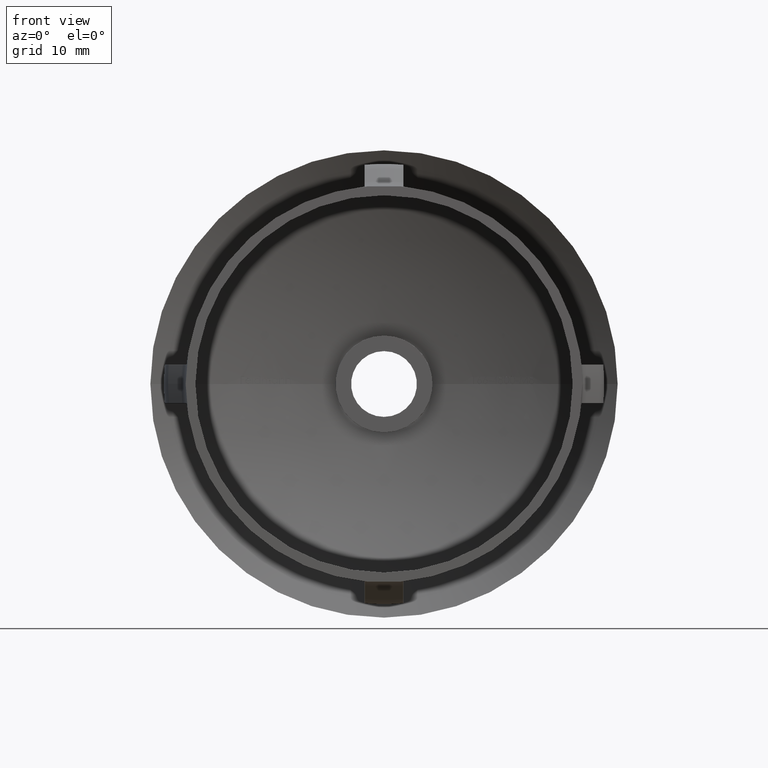
[diagram: clean part render]
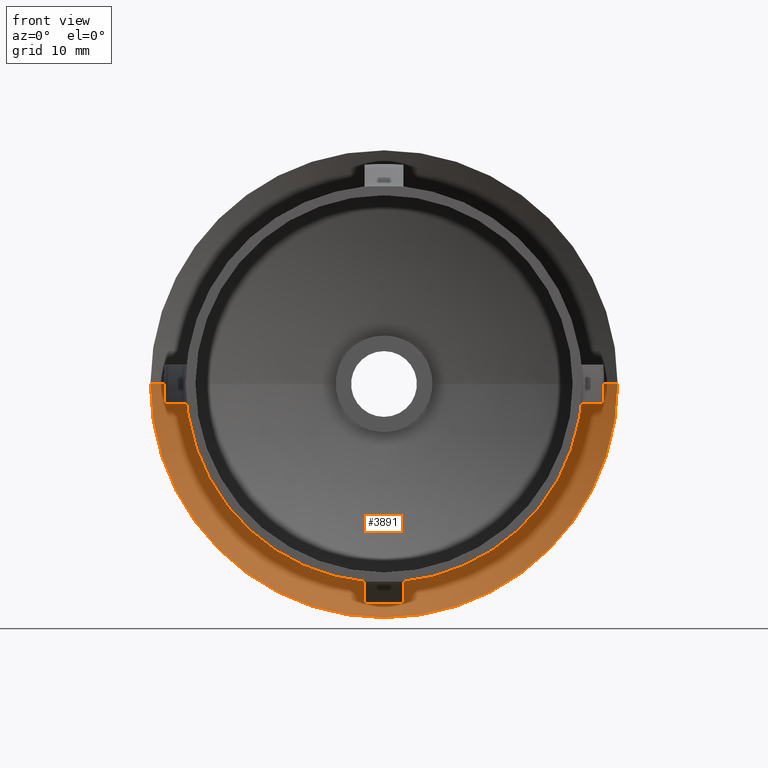
[diagram: same view with one face highlighted and labeled with its STEP entity id]
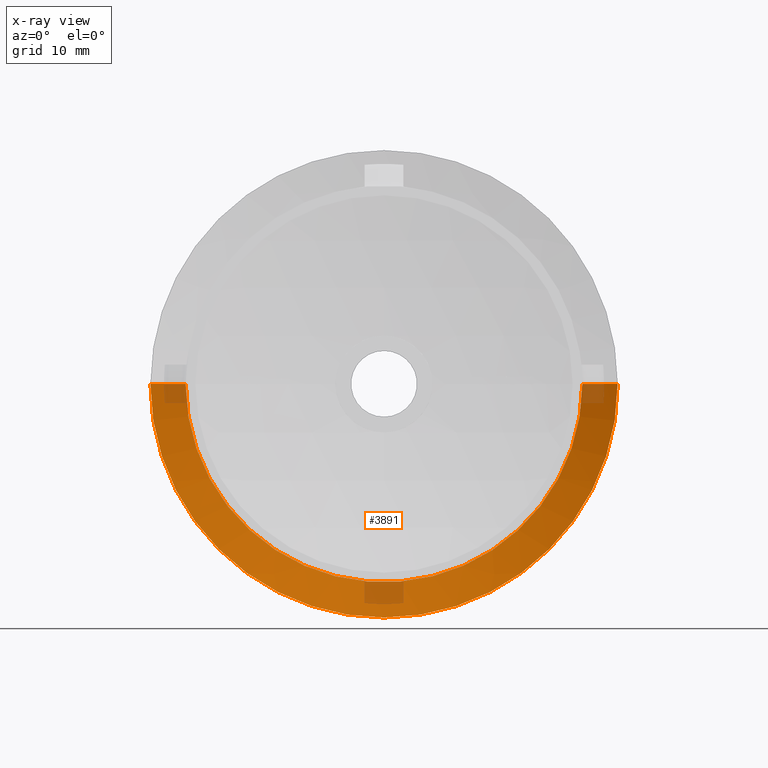
[diagram: x-ray of the same camera — body ghosted, the highlighted face saturated]
A machine part, front view. The second image highlights one B-rep face of the part: STEP entity #3891.
The next image is the same camera in x-ray: the body ghosted, the highlighted face saturated — about 7% of this face is hidden behind the body in this view.
In plain terms, the highlighted spherical surface has radius 47.5 mm.
Its self-contained STEP definition (entity closure, byte-faithful):
#297 = CARTESIAN_POINT ( 'NONE',  ( -1.351176155876895900E-014, 25.44857057125716400, 0.0000000000000000000 ) ) ;
#927 = AXIS2_PLACEMENT_3D ( 'NONE', #2884, #14693, #6916 ) ;
#1066 = DIRECTION ( 'NONE',  ( 1.000000000000000000, 0.0000000000000000000, -1.224646799147353200E-016 ) ) ;
#1116 = EDGE_LOOP ( 'NONE', ( #8509, #4368, #16827, #14471 ) ) ;
#1450 = VERTEX_POINT ( 'NONE', #10165 ) ;
#1661 = AXIS2_PLACEMENT_3D ( 'NONE', #3844, #5421, #14662 ) ;
#2430 = EDGE_CURVE ( 'NONE', #12848, #13876, #4969, .T. ) ;
#2683 = CARTESIAN_POINT ( 'NONE',  ( -24.14999999999991300, 23.50265883778230600, 2.957522019940861500E-015 ) ) ;
#2763 = AXIS2_PLACEMENT_3D ( 'NONE', #14154, #3501, #7557 ) ;
#2884 = CARTESIAN_POINT ( 'NONE',  ( -4.200538521075421400E-015, -17.39999999999999900, 0.0000000000000000000 ) ) ;
#3501 = DIRECTION ( 'NONE',  ( 0.0000000000000000000, 0.0000000000000000000, -1.000000000000000000 ) ) ;
#3579 = DIRECTION ( 'NONE',  ( 1.224646799147353200E-016, -3.557430204473923300E-031, 1.000000000000000000 ) ) ;
#3688 = AXIS2_PLACEMENT_3D ( 'NONE', #297, #6854, #9469 ) ;
#3697 = CARTESIAN_POINT ( 'NONE',  ( -4.200538521075421400E-015, -17.39999999999999900, 0.0000000000000000000 ) ) ;
#3844 = CARTESIAN_POINT ( 'NONE',  ( -1.916436701262193500E-014, 23.50265883778223500, 0.0000000000000000000 ) ) ;
#3891 = ADVANCED_FACE ( 'NONE', ( #4721 ), #4526, .F. ) ;
#4032 = VERTEX_POINT ( 'NONE', #6105 ) ;
#4368 = ORIENTED_EDGE ( 'NONE', *, *, #2430, .T. ) ;
#4526 = SPHERICAL_SURFACE ( 'NONE', #927, 47.50000000000000000 ) ;
#4721 = FACE_OUTER_BOUND ( 'NONE', #1116, .T. ) ;
#4969 = CIRCLE ( 'NONE', #14645, 47.50000000000000000 ) ;
#5261 = EDGE_CURVE ( 'NONE', #12848, #1450, #10488, .T. ) ;
#5421 = DIRECTION ( 'NONE',  ( -2.904862207577519400E-015, -1.000000000000000000, -0.0000000000000000000 ) ) ;
#6105 = CARTESIAN_POINT ( 'NONE',  ( 24.15000000000000600, 23.50265883778216700, 0.0000000000000000000 ) ) ;
#6854 = DIRECTION ( 'NONE',  ( -2.904862207577519400E-015, -1.000000000000000000, -0.0000000000000000000 ) ) ;
#6916 = DIRECTION ( 'NONE',  ( 1.000000000000000000, -2.921639538487253900E-015, 0.0000000000000000000 ) ) ;
#7557 = DIRECTION ( 'NONE',  ( -1.000000000000000000, 0.0000000000000000000, 0.0000000000000000000 ) ) ;
#8509 = ORIENTED_EDGE ( 'NONE', *, *, #5261, .F. ) ;
#9469 = DIRECTION ( 'NONE',  ( 1.000000000000000000, -2.877102350400556500E-015, 0.0000000000000000000 ) ) ;
#9757 = CIRCLE ( 'NONE', #2763, 47.50000000000000000 ) ;
#10165 = CARTESIAN_POINT ( 'NONE',  ( 20.49999999999999600, 25.44857057125710400, 0.0000000000000000000 ) ) ;
#10488 = CIRCLE ( 'NONE', #3688, 20.50000000000001100 ) ;
#11252 = EDGE_CURVE ( 'NONE', #1450, #4032, #9757, .T. ) ;
#11568 = EDGE_CURVE ( 'NONE', #13876, #4032, #13266, .T. ) ;
#12848 = VERTEX_POINT ( 'NONE', #16137 ) ;
#13266 = CIRCLE ( 'NONE', #1661, 24.15000000000002000 ) ;
#13876 = VERTEX_POINT ( 'NONE', #2683 ) ;
#14154 = CARTESIAN_POINT ( 'NONE',  ( -4.200538521075421400E-015, -17.39999999999999900, 0.0000000000000000000 ) ) ;
#14471 = ORIENTED_EDGE ( 'NONE', *, *, #11252, .F. ) ;
#14645 = AXIS2_PLACEMENT_3D ( 'NONE', #3697, #3579, #1066 ) ;
#14662 = DIRECTION ( 'NONE',  ( 1.000000000000000000, -2.873247993336324200E-015, 0.0000000000000000000 ) ) ;
#14693 = DIRECTION ( 'NONE',  ( -0.0000000000000000000, 0.0000000000000000000, 1.000000000000000000 ) ) ;
#16137 = CARTESIAN_POINT ( 'NONE',  ( -20.50000000000002100, 25.44857057125722100, 2.734023979096469000E-015 ) ) ;
#16827 = ORIENTED_EDGE ( 'NONE', *, *, #11568, .T. ) ;